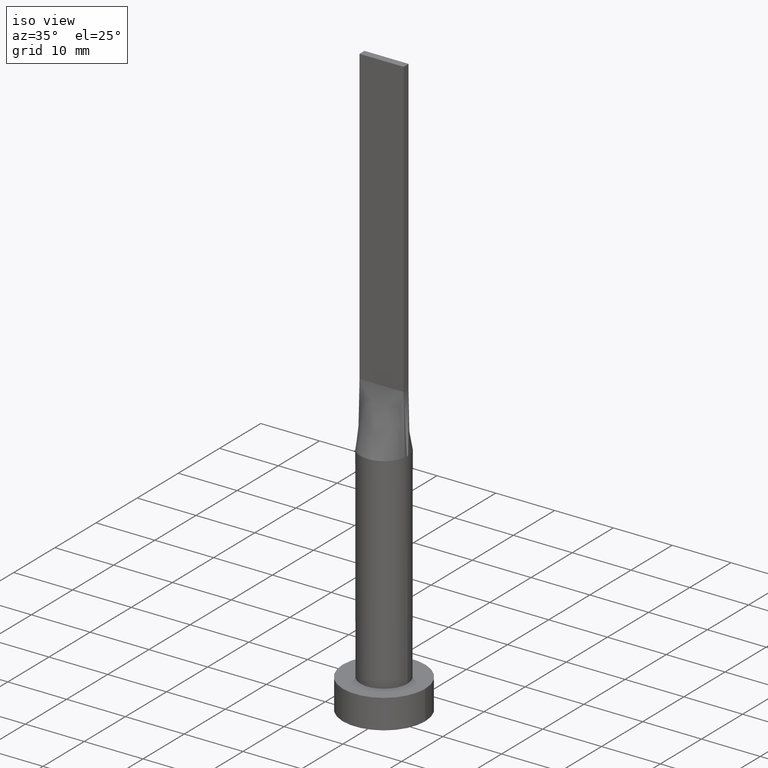
[diagram: clean part render]
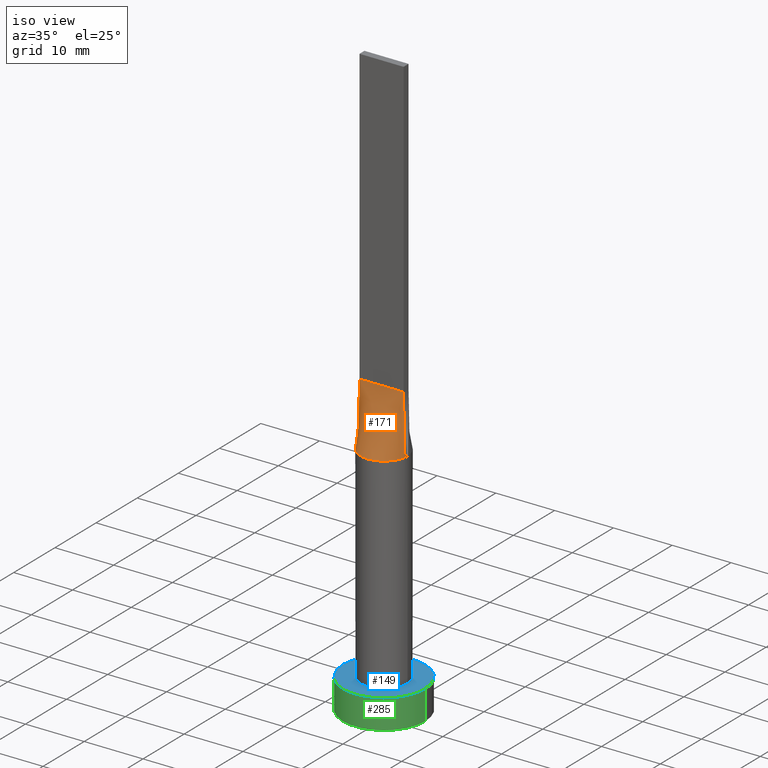
[diagram: same view with three faces highlighted in distinct colors, each labeled with its STEP entity id]
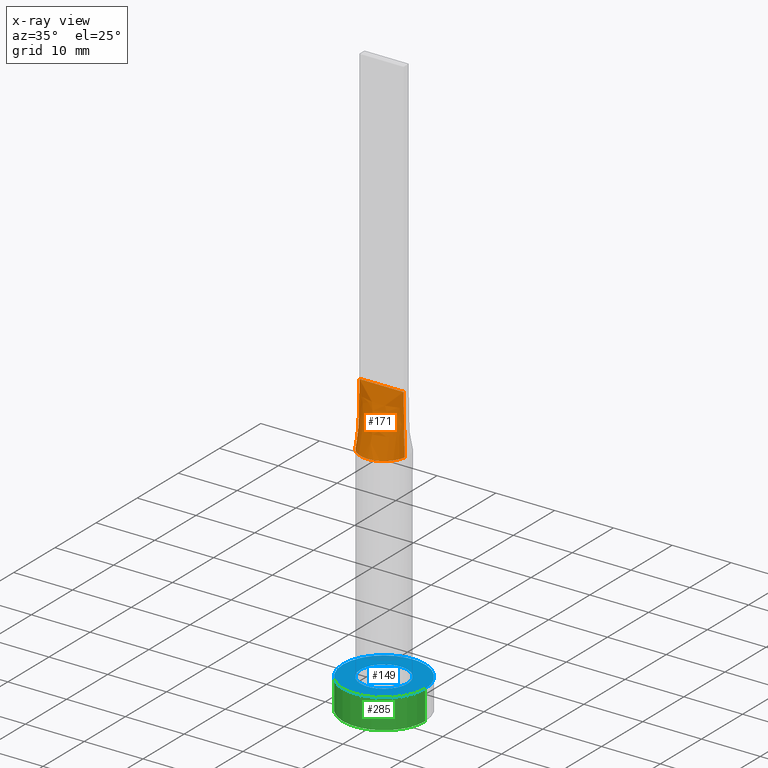
[diagram: x-ray of the same camera — body ghosted, the three highlighted faces saturated]
A machine part, iso view with three faces highlighted in distinct colors.
The next image is the same camera in x-ray (body ghosted, the three faces saturated) — at least one of them is partly hidden behind the body in this view.
Their STEP definitions:

[orange] entity #171 — the highlighted face is a freeform B-spline surface patch.
#3 = VECTOR ( 'NONE', #465, 1000.000000000000000 ) ;
#9 = CARTESIAN_POINT ( 'NONE',  ( 3.800365609718893367, -1.311488165564686614, 40.00000000000001421 ) ) ;
#16 = CARTESIAN_POINT ( 'NONE',  ( 1.250000000000001998, -0.5999999999999996447, 50.00000000000000000 ) ) ;
#24 = EDGE_CURVE ( 'NONE', #377, #481, #34, .T. ) ;
#25 = FACE_OUTER_BOUND ( 'NONE', #131, .T. ) ;
#29 = CARTESIAN_POINT ( 'NONE',  ( -3.897760447583618948, -0.9569750049467102837, 40.00000000000000000 ) ) ;
#34 = LINE ( 'NONE', #527, #439 ) ;
#40 = CARTESIAN_POINT ( 'NONE',  ( 0.5684794080625150681, -4.000000000000000888, 40.00000000000000000 ) ) ;
#41 = CIRCLE ( 'NONE', #76, 4.000000000000000000 ) ;
#45 = CARTESIAN_POINT ( 'NONE',  ( 0.3125000000000016098, -0.5999999999999995337, 50.00000000000000000 ) ) ;
#50 = CARTESIAN_POINT ( 'NONE',  ( -1.562499999999998002, -0.5999999999999994227, 50.00000000000000000 ) ) ;
#54 = CARTESIAN_POINT ( 'NONE',  ( 3.949762527666821565, -0.6319620044266891501, 40.00000000000000000 ) ) ;
#55 = EDGE_CURVE ( 'NONE', #377, #74, #200, .T. ) ;
#68 = CARTESIAN_POINT ( 'NONE',  ( -3.949762527666821565, -0.6319620044266894832, 40.00000000000000000 ) ) ;
#74 = VERTEX_POINT ( 'NONE', #574 ) ;
#76 = AXIS2_PLACEMENT_3D ( 'NONE', #255, #482, #196 ) ;
#87 = VECTOR ( 'NONE', #213, 1000.000000000000000 ) ;
#104 = CARTESIAN_POINT ( 'NONE',  ( 3.950116941581656604, -0.6320178829360038053, 40.00000000000000000 ) ) ;
#119 = CARTESIAN_POINT ( 'NONE',  ( 3.219262664220059023, -2.422342486356523938, 40.00000000000000711 ) ) ;
#126 = CARTESIAN_POINT ( 'NONE',  ( 3.125000000000000000, -0.5999999999999996447, 50.00000000000000000 ) ) ;
#131 = EDGE_LOOP ( 'NONE', ( #326, #288, #275, #407 ) ) ;
#136 = CARTESIAN_POINT ( 'NONE',  ( 3.750000000000000000, -0.5999999999999997558, 50.00000000000000000 ) ) ;
#139 = CARTESIAN_POINT ( 'NONE',  ( -2.187499999999998668, -0.5999999999999994227, 50.00000000000000000 ) ) ;
#164 = CARTESIAN_POINT ( 'NONE',  ( 2.500000000000000444, -0.5999999999999996447, 50.00000000000000000 ) ) ;
#170 = CARTESIAN_POINT ( 'NONE',  ( -2.499999999999998668, -0.5999999999999994227, 50.00000000000000000 ) ) ;
#171 = ADVANCED_FACE ( 'NONE', ( #25 ), #581, .T. ) ;
#176 = CARTESIAN_POINT ( 'NONE',  ( 2.553164211252348270, -3.116528153703943094, 39.99999999999999289 ) ) ;
#182 = LINE ( 'NONE', #277, #87 ) ;
#194 = CARTESIAN_POINT ( 'NONE',  ( -3.437499999999999556, -0.5999999999999993117, 50.00000000000000000 ) ) ;
#196 = DIRECTION ( 'NONE',  ( 1.000000000000000000, 0.000000000000000000, 0.000000000000000000 ) ) ;
#200 = LINE ( 'NONE', #569, #3 ) ;
#210 = CARTESIAN_POINT ( 'NONE',  ( 3.461914487322980349, -2.043998057340943753, 40.00000000000002842 ) ) ;
#213 = DIRECTION ( 'NONE',  ( -0.01997216621675832263, 0.003195546594681128623, 0.9997954296047624201 ) ) ;
#214 = CARTESIAN_POINT ( 'NONE',  ( 3.437499999999999556, -0.5999999999999996447, 50.00000000000000000 ) ) ;
#218 = CARTESIAN_POINT ( 'NONE',  ( 1.134810363096319108, -3.874001625491798162, 40.00000000000000000 ) ) ;
#236 = CARTESIAN_POINT ( 'NONE',  ( -3.750000000000000000, -0.5999999999999993117, 50.00000000000000000 ) ) ;
#244 = CARTESIAN_POINT ( 'NONE',  ( -3.950111798046394007, -0.6320171791297864994, 40.00000000000000000 ) ) ;
#255 = CARTESIAN_POINT ( 'NONE',  ( 0.000000000000000000, 0.000000000000000000, 40.00000000000000000 ) ) ;
#258 = CARTESIAN_POINT ( 'NONE',  ( -2.553164211252349158, -3.116528153703943094, 40.00000000000000711 ) ) ;
#269 = CARTESIAN_POINT ( 'NONE',  ( 2.127794970397208552, -3.430476893735948440, 39.99999999999999289 ) ) ;
#275 = ORIENTED_EDGE ( 'NONE', *, *, #55, .F. ) ;
#277 = CARTESIAN_POINT ( 'NONE',  ( 3.849881263833410561, -0.6159810022133445084, 45.00000000000000000 ) ) ;
#288 = ORIENTED_EDGE ( 'NONE', *, *, #336, .T. ) ;
#303 = CARTESIAN_POINT ( 'NONE',  ( -2.127794970397209884, -3.430476893735947996, 40.00000000000000000 ) ) ;
#306 = VERTEX_POINT ( 'NONE', #104 ) ;
#315 = CARTESIAN_POINT ( 'NONE',  ( -3.219262664220059023, -2.422342486356523050, 39.99999999999999289 ) ) ;
#326 = ORIENTED_EDGE ( 'NONE', *, *, #565, .T. ) ;
#332 = CARTESIAN_POINT ( 'NONE',  ( -3.800365609718892923, -1.311488165564685726, 40.00000000000000711 ) ) ;
#336 = EDGE_CURVE ( 'NONE', #306, #74, #182, .T. ) ;
#343 = CARTESIAN_POINT ( 'NONE',  ( -1.134810363096319996, -3.874001625491796830, 39.99999999999999289 ) ) ;
#356 = CARTESIAN_POINT ( 'NONE',  ( -0.3124999999999982792, -0.5999999999999995337, 50.00000000000000711 ) ) ;
#359 = CARTESIAN_POINT ( 'NONE',  ( 2.187500000000000888, -0.5999999999999996447, 50.00000000000000000 ) ) ;
#377 = VERTEX_POINT ( 'NONE', #478 ) ;
#406 = CARTESIAN_POINT ( 'NONE',  ( -0.6249999999999978906, -0.5999999999999994227, 50.00000000000000000 ) ) ;
#407 = ORIENTED_EDGE ( 'NONE', *, *, #24, .T. ) ;
#409 = CARTESIAN_POINT ( 'NONE',  ( -3.461914487322979905, -2.043998057340941976, 40.00000000000000000 ) ) ;
#439 = VECTOR ( 'NONE', #475, 1000.000000000000000 ) ;
#447 = CARTESIAN_POINT ( 'NONE',  ( -0.5684794080625156232, -4.000000000000000000, 39.99999999999999289 ) ) ;
#451 = CARTESIAN_POINT ( 'NONE',  ( 3.897760447583619836, -0.9569750049467118380, 40.00000000000000000 ) ) ;
#465 = DIRECTION ( 'NONE',  ( 1.000000000000000000, -5.782411586589357392E-17, 0.000000000000000000 ) ) ;
#475 = DIRECTION ( 'NONE',  ( -0.01997216621675832263, -0.003195546594681204517, -0.9997954296047624201 ) ) ;
#478 = CARTESIAN_POINT ( 'NONE',  ( -3.750000000000000000, -0.5999999999999993117, 50.00000000000000000 ) ) ;
#481 = VERTEX_POINT ( 'NONE', #244 ) ;
#482 = DIRECTION ( 'NONE',  ( 0.000000000000000000, 0.000000000000000000, 1.000000000000000000 ) ) ;
#489 = CARTESIAN_POINT ( 'NONE',  ( 0.6250000000000017764, -0.5999999999999995337, 50.00000000000000000 ) ) ;
#521 = CARTESIAN_POINT ( 'NONE',  ( -3.124999999999999112, -0.5999999999999993117, 50.00000000000000000 ) ) ;
#527 = CARTESIAN_POINT ( 'NONE',  ( -3.849881263833410561, -0.6159810022133443974, 45.00000000000000000 ) ) ;
#530 = CARTESIAN_POINT ( 'NONE',  ( 1.562500000000001776, -0.5999999999999996447, 50.00000000000000000 ) ) ;
#545 = CARTESIAN_POINT ( 'NONE',  ( -1.249999999999997558, -0.5999999999999994227, 50.00000000000000000 ) ) ;
#565 = EDGE_CURVE ( 'NONE', #481, #306, #41, .T. ) ;
#569 = CARTESIAN_POINT ( 'NONE',  ( -3.750000000000000000, -0.5999999999999993117, 50.00000000000000000 ) ) ;
#574 = CARTESIAN_POINT ( 'NONE',  ( 3.750000000000000000, -0.5999999999999997558, 50.00000000000000000 ) ) ;
#581 = B_SPLINE_SURFACE_WITH_KNOTS ( 'NONE', 3, 1, ( 
 ( #68, #236 ),
 ( #29, #194 ),
 ( #332, #521 ),
 ( #409, #170 ),
 ( #315, #139 ),
 ( #258, #50 ),
 ( #303, #545 ),
 ( #343, #406 ),
 ( #447, #356 ),
 ( #40, #45 ),
 ( #218, #489 ),
 ( #269, #16 ),
 ( #176, #530 ),
 ( #119, #359 ),
 ( #210, #164 ),
 ( #9, #126 ),
 ( #451, #214 ),
 ( #54, #136 ) ),
 .UNSPECIFIED., .F., .F., .F.,
 ( 4, 2, 2, 2, 2, 2, 2, 2, 4 ),
 ( 2, 2 ),
 ( 0.000000000000000000, 0.1250000000000000555, 0.2500000000000001110, 0.3750000000000001665, 0.5000000000000001110, 0.6250000000000001110, 0.7500000000000001110, 0.8750000000000000000, 1.000000000000000000 ),
 ( 0.000000000000000000, 1.000000000000000000 ),
 .UNSPECIFIED. ) ;

[blue] entity #149 — the highlighted planar face has unit normal (0, 0, 1).
#14 = AXIS2_PLACEMENT_3D ( 'NONE', #97, #454, #223 ) ;
#15 = CIRCLE ( 'NONE', #135, 7.000000000000000000 ) ;
#17 = DIRECTION ( 'NONE',  ( 0.000000000000000000, 0.000000000000000000, 1.000000000000000000 ) ) ;
#19 = CARTESIAN_POINT ( 'NONE',  ( 0.000000000000000000, 0.000000000000000000, 5.000000000000000000 ) ) ;
#33 = CARTESIAN_POINT ( 'NONE',  ( 7.000000000000000000, 8.572527594031473190E-16, 5.000000000000000000 ) ) ;
#65 = FACE_BOUND ( 'NONE', #160, .T. ) ;
#80 = DIRECTION ( 'NONE',  ( 0.000000000000000000, 0.000000000000000000, 1.000000000000000000 ) ) ;
#97 = CARTESIAN_POINT ( 'NONE',  ( 0.000000000000000000, 0.000000000000000000, 5.000000000000000000 ) ) ;
#128 = EDGE_CURVE ( 'NONE', #457, #522, #500, .T. ) ;
#135 = AXIS2_PLACEMENT_3D ( 'NONE', #19, #181, #509 ) ;
#148 = PLANE ( 'NONE',  #318 ) ;
#149 = ADVANCED_FACE ( 'NONE', ( #65, #380 ), #148, .T. ) ;
#156 = CARTESIAN_POINT ( 'NONE',  ( -4.000000000000000000, 0.000000000000000000, 5.000000000000000000 ) ) ;
#160 = EDGE_LOOP ( 'NONE', ( #562, #201 ) ) ;
#178 = VERTEX_POINT ( 'NONE', #499 ) ;
#181 = DIRECTION ( 'NONE',  ( 0.000000000000000000, 0.000000000000000000, 1.000000000000000000 ) ) ;
#191 = ORIENTED_EDGE ( 'NONE', *, *, #428, .T. ) ;
#201 = ORIENTED_EDGE ( 'NONE', *, *, #128, .F. ) ;
#208 = EDGE_CURVE ( 'NONE', #522, #457, #281, .T. ) ;
#223 = DIRECTION ( 'NONE',  ( 1.000000000000000000, 0.000000000000000000, 0.000000000000000000 ) ) ;
#233 = DIRECTION ( 'NONE',  ( 1.000000000000000000, 0.000000000000000000, -0.000000000000000000 ) ) ;
#270 = CARTESIAN_POINT ( 'NONE',  ( 0.000000000000000000, 0.000000000000000000, 5.000000000000000000 ) ) ;
#281 = CIRCLE ( 'NONE', #14, 4.000000000000000000 ) ;
#283 = DIRECTION ( 'NONE',  ( 0.000000000000000000, 0.000000000000000000, 1.000000000000000000 ) ) ;
#300 = AXIS2_PLACEMENT_3D ( 'NONE', #338, #80, #328 ) ;
#308 = AXIS2_PLACEMENT_3D ( 'NONE', #270, #17, #556 ) ;
#318 = AXIS2_PLACEMENT_3D ( 'NONE', #564, #283, #233 ) ;
#328 = DIRECTION ( 'NONE',  ( 1.000000000000000000, 0.000000000000000000, 0.000000000000000000 ) ) ;
#338 = CARTESIAN_POINT ( 'NONE',  ( 0.000000000000000000, 0.000000000000000000, 5.000000000000000000 ) ) ;
#368 = VERTEX_POINT ( 'NONE', #33 ) ;
#369 = CARTESIAN_POINT ( 'NONE',  ( 4.000000000000000000, 4.898587196589412829E-16, 5.000000000000000000 ) ) ;
#380 = FACE_OUTER_BOUND ( 'NONE', #476, .T. ) ;
#400 = ORIENTED_EDGE ( 'NONE', *, *, #462, .T. ) ;
#428 = EDGE_CURVE ( 'NONE', #368, #178, #15, .T. ) ;
#454 = DIRECTION ( 'NONE',  ( 0.000000000000000000, 0.000000000000000000, 1.000000000000000000 ) ) ;
#457 = VERTEX_POINT ( 'NONE', #369 ) ;
#462 = EDGE_CURVE ( 'NONE', #178, #368, #528, .T. ) ;
#476 = EDGE_LOOP ( 'NONE', ( #400, #191 ) ) ;
#499 = CARTESIAN_POINT ( 'NONE',  ( -7.000000000000000000, 0.000000000000000000, 5.000000000000000000 ) ) ;
#500 = CIRCLE ( 'NONE', #300, 4.000000000000000000 ) ;
#509 = DIRECTION ( 'NONE',  ( 1.000000000000000000, 0.000000000000000000, 0.000000000000000000 ) ) ;
#522 = VERTEX_POINT ( 'NONE', #156 ) ;
#528 = CIRCLE ( 'NONE', #308, 7.000000000000000000 ) ;
#556 = DIRECTION ( 'NONE',  ( 1.000000000000000000, 0.000000000000000000, 0.000000000000000000 ) ) ;
#562 = ORIENTED_EDGE ( 'NONE', *, *, #208, .F. ) ;
#564 = CARTESIAN_POINT ( 'NONE',  ( 0.000000000000000000, 0.000000000000000000, 5.000000000000000000 ) ) ;

[green] entity #285 — the highlighted cylindrical surface (partial cylindrical patch) has radius 7 mm, axis along (-0, -0, -1).
#1 = DIRECTION ( 'NONE',  ( 1.000000000000000000, 0.000000000000000000, 0.000000000000000000 ) ) ;
#6 = ORIENTED_EDGE ( 'NONE', *, *, #46, .F. ) ;
#17 = DIRECTION ( 'NONE',  ( 0.000000000000000000, 0.000000000000000000, 1.000000000000000000 ) ) ;
#33 = CARTESIAN_POINT ( 'NONE',  ( 7.000000000000000000, 8.572527594031473190E-16, 5.000000000000000000 ) ) ;
#46 = EDGE_CURVE ( 'NONE', #368, #474, #242, .T. ) ;
#101 = CARTESIAN_POINT ( 'NONE',  ( 7.000000000000000000, 8.572527594031473190E-16, 0.000000000000000000 ) ) ;
#115 = ORIENTED_EDGE ( 'NONE', *, *, #203, .T. ) ;
#123 = LINE ( 'NONE', #486, #398 ) ;
#147 = VECTOR ( 'NONE', #469, 1000.000000000000000 ) ;
#158 = CIRCLE ( 'NONE', #221, 7.000000000000000000 ) ;
#172 = AXIS2_PLACEMENT_3D ( 'NONE', #552, #375, #231 ) ;
#178 = VERTEX_POINT ( 'NONE', #499 ) ;
#203 = EDGE_CURVE ( 'NONE', #178, #577, #123, .T. ) ;
#221 = AXIS2_PLACEMENT_3D ( 'NONE', #443, #396, #1 ) ;
#227 = EDGE_LOOP ( 'NONE', ( #6, #388, #115, #566 ) ) ;
#228 = EDGE_CURVE ( 'NONE', #577, #474, #158, .T. ) ;
#231 = DIRECTION ( 'NONE',  ( -1.000000000000000000, 0.000000000000000000, 0.000000000000000000 ) ) ;
#242 = LINE ( 'NONE', #373, #147 ) ;
#254 = CARTESIAN_POINT ( 'NONE',  ( -7.000000000000000000, 0.000000000000000000, 0.000000000000000000 ) ) ;
#270 = CARTESIAN_POINT ( 'NONE',  ( 0.000000000000000000, 0.000000000000000000, 5.000000000000000000 ) ) ;
#274 = FACE_OUTER_BOUND ( 'NONE', #227, .T. ) ;
#285 = ADVANCED_FACE ( 'NONE', ( #274 ), #472, .T. ) ;
#308 = AXIS2_PLACEMENT_3D ( 'NONE', #270, #17, #556 ) ;
#368 = VERTEX_POINT ( 'NONE', #33 ) ;
#373 = CARTESIAN_POINT ( 'NONE',  ( 7.000000000000000000, 8.572527594031473190E-16, 5.000000000000000000 ) ) ;
#375 = DIRECTION ( 'NONE',  ( -0.000000000000000000, -0.000000000000000000, -1.000000000000000000 ) ) ;
#388 = ORIENTED_EDGE ( 'NONE', *, *, #462, .F. ) ;
#396 = DIRECTION ( 'NONE',  ( 0.000000000000000000, 0.000000000000000000, 1.000000000000000000 ) ) ;
#398 = VECTOR ( 'NONE', #548, 1000.000000000000000 ) ;
#443 = CARTESIAN_POINT ( 'NONE',  ( 0.000000000000000000, 0.000000000000000000, 0.000000000000000000 ) ) ;
#462 = EDGE_CURVE ( 'NONE', #178, #368, #528, .T. ) ;
#469 = DIRECTION ( 'NONE',  ( -0.000000000000000000, -0.000000000000000000, -1.000000000000000000 ) ) ;
#472 = CYLINDRICAL_SURFACE ( 'NONE', #172, 7.000000000000000000 ) ;
#474 = VERTEX_POINT ( 'NONE', #101 ) ;
#486 = CARTESIAN_POINT ( 'NONE',  ( -7.000000000000000000, 0.000000000000000000, 5.000000000000000000 ) ) ;
#499 = CARTESIAN_POINT ( 'NONE',  ( -7.000000000000000000, 0.000000000000000000, 5.000000000000000000 ) ) ;
#528 = CIRCLE ( 'NONE', #308, 7.000000000000000000 ) ;
#548 = DIRECTION ( 'NONE',  ( -0.000000000000000000, -0.000000000000000000, -1.000000000000000000 ) ) ;
#552 = CARTESIAN_POINT ( 'NONE',  ( 0.000000000000000000, 0.000000000000000000, 5.000000000000000000 ) ) ;
#556 = DIRECTION ( 'NONE',  ( 1.000000000000000000, 0.000000000000000000, 0.000000000000000000 ) ) ;
#566 = ORIENTED_EDGE ( 'NONE', *, *, #228, .T. ) ;
#577 = VERTEX_POINT ( 'NONE', #254 ) ;